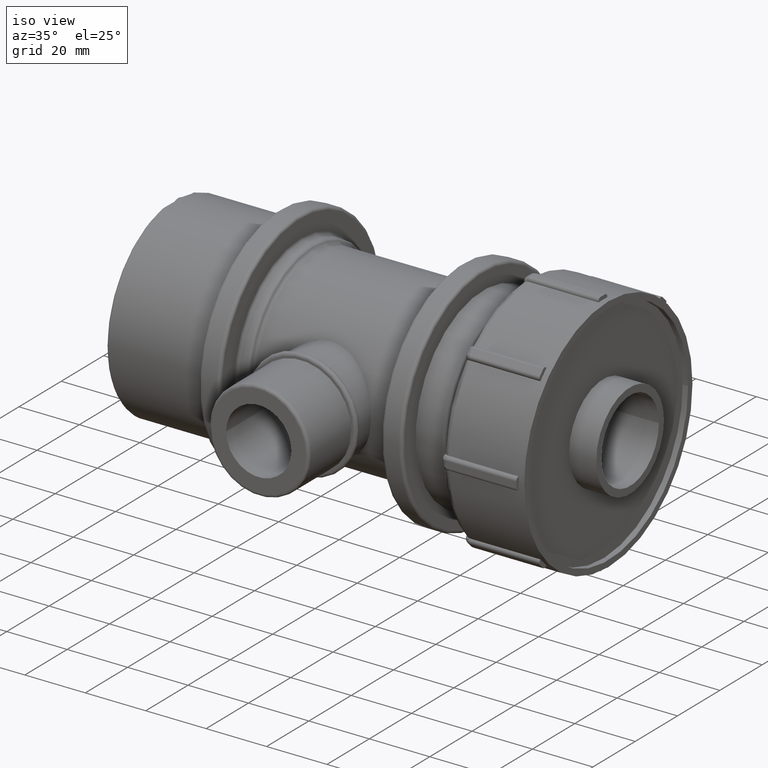
[diagram: clean part render]
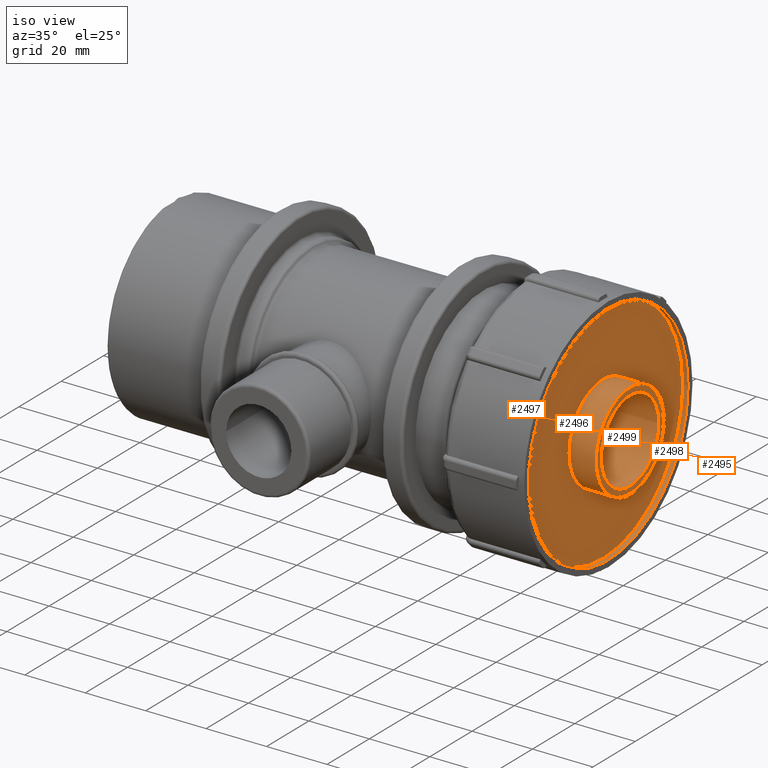
[diagram: same view with one multi-face feature highlighted, each face labeled with its STEP entity id]
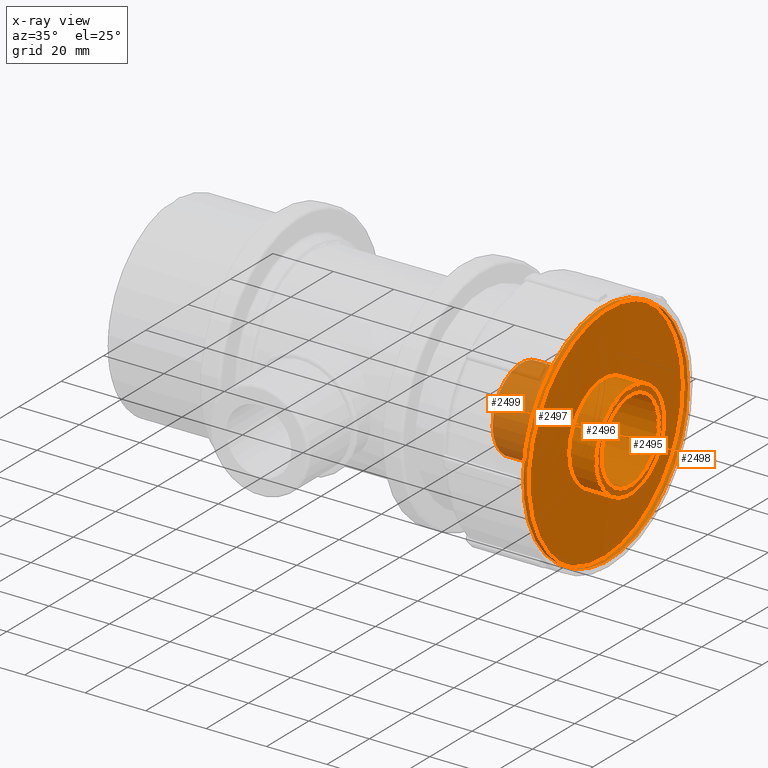
[diagram: x-ray of the same camera — body ghosted, the whole feature saturated]
A machine part, iso view. The highlighted faces form ONE feature: a stepped (counterbored) hole: 3 coaxial cylindrical walls of radii 13.6 -> 16 -> 37.72 mm joined by 2 annular planar shoulder face(s). The faces share edges in the B-rep.
The next image is the same camera in x-ray: the body ghosted and the whole hole feature saturated, so the bore chain is visible through the body.
Their STEP definitions:
[1] entity #2495 (Cylinder):
#475=CIRCLE('',#2802,37.72);
#476=CIRCLE('',#2804,37.72);
#554=FACE_BOUND('',#927,.T.);
#723=FACE_OUTER_BOUND('',#926,.T.);
#926=EDGE_LOOP('',(#2242));
#927=EDGE_LOOP('',(#2243));
#1233=VERTEX_POINT('',#4923);
#1234=VERTEX_POINT('',#4926);
#1577=EDGE_CURVE('',#1233,#1233,#475,.T.);
#1578=EDGE_CURVE('',#1234,#1234,#476,.T.);
#2242=ORIENTED_EDGE('',*,*,#1578,.F.);
#2243=ORIENTED_EDGE('',*,*,#1577,.T.);
#2338=CYLINDRICAL_SURFACE('',#2803,37.72);
#2495=ADVANCED_FACE('',(#723,#554),#2338,.F.);
#2802=AXIS2_PLACEMENT_3D('',#4924,#3514,#3515);
#2803=AXIS2_PLACEMENT_3D('',#4925,#3516,#3517);
#2804=AXIS2_PLACEMENT_3D('',#4927,#3518,#3519);
#3514=DIRECTION('center_axis',(1.,0.,0.));
#3515=DIRECTION('ref_axis',(0.,0.,-1.));
#3516=DIRECTION('center_axis',(1.,0.,0.));
#3517=DIRECTION('ref_axis',(0.,1.,0.));
#3518=DIRECTION('center_axis',(1.,0.,0.));
#3519=DIRECTION('ref_axis',(0.,0.,-1.));
#4923=CARTESIAN_POINT('',(75.1,37.72,0.));
#4924=CARTESIAN_POINT('Origin',(75.1,0.,0.));
#4925=CARTESIAN_POINT('Origin',(74.2,0.,0.));
#4926=CARTESIAN_POINT('',(73.3,28.0822170987109,-25.1830792958461));
#4927=CARTESIAN_POINT('Origin',(73.3,0.,0.));
[2] entity #2497 (Cylinder):
#477=CIRCLE('',#2806,16.);
#478=CIRCLE('',#2808,16.);
#556=FACE_BOUND('',#931,.T.);
#725=FACE_OUTER_BOUND('',#930,.T.);
#930=EDGE_LOOP('',(#2246));
#931=EDGE_LOOP('',(#2247));
#1235=VERTEX_POINT('',#4929);
#1236=VERTEX_POINT('',#4932);
#1579=EDGE_CURVE('',#1235,#1235,#477,.T.);
#1580=EDGE_CURVE('',#1236,#1236,#478,.T.);
#2246=ORIENTED_EDGE('',*,*,#1580,.F.);
#2247=ORIENTED_EDGE('',*,*,#1579,.T.);
#2339=CYLINDRICAL_SURFACE('',#2807,16.);
#2497=ADVANCED_FACE('',(#725,#556),#2339,.T.);
#2806=AXIS2_PLACEMENT_3D('',#4930,#3522,#3523);
#2807=AXIS2_PLACEMENT_3D('',#4931,#3524,#3525);
#2808=AXIS2_PLACEMENT_3D('',#4933,#3526,#3527);
#3522=DIRECTION('center_axis',(1.,0.,0.));
#3523=DIRECTION('ref_axis',(0.,0.,-1.));
#3524=DIRECTION('center_axis',(1.,0.,0.));
#3525=DIRECTION('ref_axis',(0.,1.,0.));
#3526=DIRECTION('center_axis',(1.,0.,0.));
#3527=DIRECTION('ref_axis',(0.,0.,-1.));
#4929=CARTESIAN_POINT('',(73.3,16.,0.));
#4930=CARTESIAN_POINT('Origin',(73.3,0.,0.));
#4931=CARTESIAN_POINT('Origin',(77.8,0.,0.));
#4932=CARTESIAN_POINT('',(82.3,16.,0.));
#4933=CARTESIAN_POINT('Origin',(82.3,0.,0.));
[3] entity #2499 (Cylinder):
#479=CIRCLE('',#2810,13.6);
#480=CIRCLE('',#2812,13.6);
#558=FACE_BOUND('',#935,.T.);
#727=FACE_OUTER_BOUND('',#934,.T.);
#934=EDGE_LOOP('',(#2250));
#935=EDGE_LOOP('',(#2251));
#1237=VERTEX_POINT('',#4935);
#1238=VERTEX_POINT('',#4938);
#1581=EDGE_CURVE('',#1237,#1237,#479,.T.);
#1582=EDGE_CURVE('',#1238,#1238,#480,.T.);
#2250=ORIENTED_EDGE('',*,*,#1582,.F.);
#2251=ORIENTED_EDGE('',*,*,#1581,.T.);
#2340=CYLINDRICAL_SURFACE('',#2811,13.6);
#2499=ADVANCED_FACE('',(#727,#558),#2340,.F.);
#2810=AXIS2_PLACEMENT_3D('',#4936,#3530,#3531);
#2811=AXIS2_PLACEMENT_3D('',#4937,#3532,#3533);
#2812=AXIS2_PLACEMENT_3D('',#4939,#3534,#3535);
#3530=DIRECTION('center_axis',(1.,0.,0.));
#3531=DIRECTION('ref_axis',(0.,0.,-1.));
#3532=DIRECTION('center_axis',(1.,0.,0.));
#3533=DIRECTION('ref_axis',(0.,1.,0.));
#3534=DIRECTION('center_axis',(1.,0.,0.));
#3535=DIRECTION('ref_axis',(0.,0.,-1.));
#4935=CARTESIAN_POINT('',(82.3,13.6,0.));
#4936=CARTESIAN_POINT('Origin',(82.3,0.,0.));
#4937=CARTESIAN_POINT('Origin',(64.3,0.,0.));
#4938=CARTESIAN_POINT('',(46.3,13.6,0.));
#4939=CARTESIAN_POINT('Origin',(46.3,0.,0.));
[4] entity #2498 (Plane):
#299=PLANE('',#2809);
#478=CIRCLE('',#2808,16.);
#479=CIRCLE('',#2810,13.6);
#557=FACE_BOUND('',#933,.T.);
#726=FACE_OUTER_BOUND('',#932,.T.);
#932=EDGE_LOOP('',(#2248));
#933=EDGE_LOOP('',(#2249));
#1236=VERTEX_POINT('',#4932);
#1237=VERTEX_POINT('',#4935);
#1580=EDGE_CURVE('',#1236,#1236,#478,.T.);
#1581=EDGE_CURVE('',#1237,#1237,#479,.T.);
#2248=ORIENTED_EDGE('',*,*,#1580,.T.);
#2249=ORIENTED_EDGE('',*,*,#1581,.F.);
#2498=ADVANCED_FACE('',(#726,#557),#299,.T.);
#2808=AXIS2_PLACEMENT_3D('',#4933,#3526,#3527);
#2809=AXIS2_PLACEMENT_3D('',#4934,#3528,#3529);
#2810=AXIS2_PLACEMENT_3D('',#4936,#3530,#3531);
#3526=DIRECTION('center_axis',(1.,0.,0.));
#3527=DIRECTION('ref_axis',(0.,0.,-1.));
#3528=DIRECTION('center_axis',(1.,0.,0.));
#3529=DIRECTION('ref_axis',(0.,0.,-1.));
#3530=DIRECTION('center_axis',(1.,0.,0.));
#3531=DIRECTION('ref_axis',(0.,0.,-1.));
#4932=CARTESIAN_POINT('',(82.3,16.,0.));
#4933=CARTESIAN_POINT('Origin',(82.3,0.,0.));
#4934=CARTESIAN_POINT('Origin',(82.3,13.6,0.));
#4935=CARTESIAN_POINT('',(82.3,13.6,0.));
#4936=CARTESIAN_POINT('Origin',(82.3,0.,0.));
[5] entity #2496 (Plane):
#298=PLANE('',#2805);
#476=CIRCLE('',#2804,37.72);
#477=CIRCLE('',#2806,16.);
#555=FACE_BOUND('',#929,.T.);
#724=FACE_OUTER_BOUND('',#928,.T.);
#928=EDGE_LOOP('',(#2244));
#929=EDGE_LOOP('',(#2245));
#1234=VERTEX_POINT('',#4926);
#1235=VERTEX_POINT('',#4929);
#1578=EDGE_CURVE('',#1234,#1234,#476,.T.);
#1579=EDGE_CURVE('',#1235,#1235,#477,.T.);
#2244=ORIENTED_EDGE('',*,*,#1578,.T.);
#2245=ORIENTED_EDGE('',*,*,#1579,.F.);
#2496=ADVANCED_FACE('',(#724,#555),#298,.T.);
#2804=AXIS2_PLACEMENT_3D('',#4927,#3518,#3519);
#2805=AXIS2_PLACEMENT_3D('',#4928,#3520,#3521);
#2806=AXIS2_PLACEMENT_3D('',#4930,#3522,#3523);
#3518=DIRECTION('center_axis',(1.,0.,0.));
#3519=DIRECTION('ref_axis',(0.,0.,-1.));
#3520=DIRECTION('center_axis',(1.,0.,0.));
#3521=DIRECTION('ref_axis',(0.,0.,-1.));
#3522=DIRECTION('center_axis',(1.,0.,0.));
#3523=DIRECTION('ref_axis',(0.,0.,-1.));
#4926=CARTESIAN_POINT('',(73.3,28.0822170987109,-25.1830792958461));
#4927=CARTESIAN_POINT('Origin',(73.3,0.,0.));
#4928=CARTESIAN_POINT('Origin',(73.3,16.,0.));
#4929=CARTESIAN_POINT('',(73.3,16.,0.));
#4930=CARTESIAN_POINT('Origin',(73.3,0.,0.));